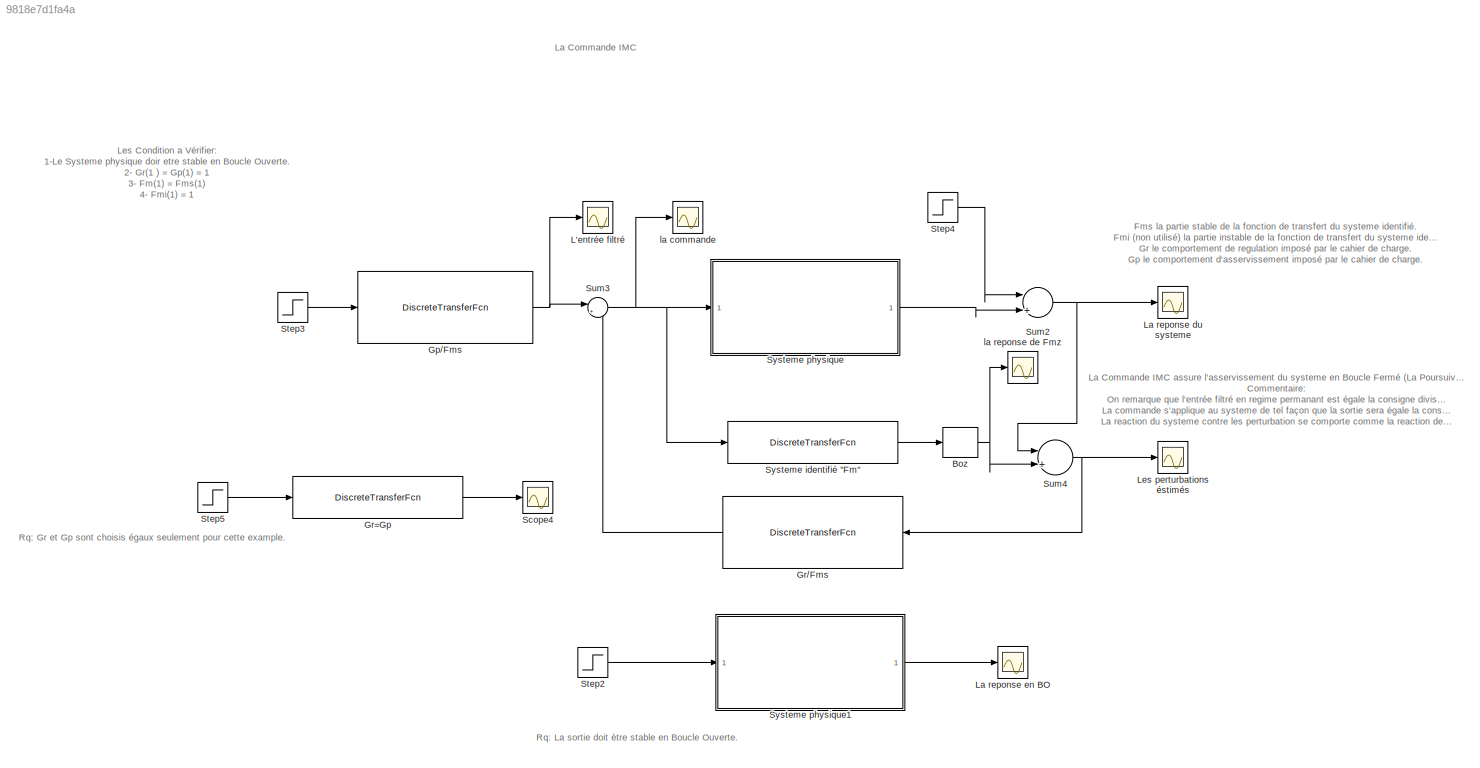
MODEL slx_9818e7d1fa4a
KIND model
CONFIG AbsTol = auto
CONFIG EnableMultiTasking = off
CONFIG FixedStep = auto
CONFIG MaxStep = auto
CONFIG MinStep = auto
CONFIG RelTol = 1e-3
CONFIG SampleTimeConstraint = Unconstrained
CONFIG Solver = VariableStepAuto
CONFIG SolverName = VariableStepAuto
CONFIG StartTime = 0.0
CONFIG StopTime = 100
BLOCK [ZeroOrderHold] Boz 
BLOCK [DiscreteTransferFcn] Gp//Fms
  Denominator = [0.0755   -0.0755    0.0189]
  InputPortMap = u0
  Numerator = [0.2500   -0.4565    0.2085]
  Ports = [1, 1]
BLOCK [DiscreteTransferFcn] Gr//Fms 
  Denominator = [0.0755   -0.0755    0.0189]
  InputPortMap = u0
  Numerator = [0.2500   -0.4565    0.2085]
  Ports = [1, 1]
BLOCK [DiscreteTransferFcn] Gr=Gp
  Denominator = [1.0000   -1.0000    0.2500]
  InputPortMap = u0
  Numerator = [0.5*0.5]
  Ports = [1, 1]
BLOCK [Scope] L'entrée filtré
  NumInputPorts = 1
  Ports = [1]
  ScopeSpecificationString = Simulink.scopes.TimeScopeBlockCfg('CurrentConfiguration', extmgr.ConfigurationSet(extmgr.Configuration('Core','General UI',true),extmgr.Configuration('Core','Source UI',true),extmgr.Configuration('Sources','WiredSimulink',true,'DataLoggingVariableName','ScopeData4'),extmgr.Configuration('Visuals','Time Domain',true,'SerializedDisplays',{struct('MinYLimReal','-0.70909','MaxYLimReal','2.77768','YLab...<+1451ch>
BLOCK [Scope] La reponse du systeme 
  NumInputPorts = 1
  Ports = [1]
  ScopeSpecificationString = Simulink.scopes.TimeScopeBlockCfg('CurrentConfiguration', extmgr.ConfigurationSet(extmgr.Configuration('Core','General UI',true),extmgr.Configuration('Core','Source UI',true),extmgr.Configuration('Sources','WiredSimulink',true,'DataLoggingVariableName','ScopeData2'),extmgr.Configuration('Visuals','Time Domain',true,'SerializedDisplays',{struct('MinYLimReal','-0.25276','MaxYLimReal','2.27484','YLab...<+1389ch>
BLOCK [Scope] La reponse en BO 
  NumInputPorts = 1
  Ports = [1]
  ScopeSpecificationString = Simulink.scopes.TimeScopeBlockCfg('CurrentConfiguration', extmgr.ConfigurationSet(extmgr.Configuration('Core','General UI',true),extmgr.Configuration('Core','Source UI',true),extmgr.Configuration('Sources','WiredSimulink',true,'DataLoggingVariableName','ScopeData1'),extmgr.Configuration('Visuals','Time Domain',true,'SerializedDisplays',{struct('MinYLimReal','-0.35688','MaxYLimReal','1.38929','YLab...<+1389ch>
BLOCK [Scope] Les perturbations éstimés
  NumInputPorts = 1
  Ports = [1]
  ScopeSpecificationString = Simulink.scopes.TimeScopeBlockCfg('CurrentConfiguration', extmgr.ConfigurationSet(extmgr.Configuration('Core','General UI',true),extmgr.Configuration('Core','Source UI',true),extmgr.Configuration('Sources','WiredSimulink',true,'DataLoggingVariableName','ScopeData6'),extmgr.Configuration('Visuals','Time Domain',true,'SerializedDisplays',{struct('MinYLimReal','-0.35688','MaxYLimReal','1.38929','YLab...<+1389ch>
BLOCK [Scope] Scope4
  NumInputPorts = 1
  Ports = [1]
  ScopeSpecificationString = Simulink.scopes.TimeScopeBlockCfg('CurrentConfiguration', extmgr.ConfigurationSet(extmgr.Configuration('Core','General UI',true),extmgr.Configuration('Core','Source UI',true),extmgr.Configuration('Sources','WiredSimulink',true,'DataLoggingVariableName','ScopeData3'),extmgr.Configuration('Visuals','Time Domain',true,'SerializedDisplays',{struct('MinYLimReal','-0.125','MaxYLimReal','1.125','YLabelRe...<+1375ch>
BLOCK [Step] Step2
  SampleTime = 0
  Time = 0
BLOCK [Step] Step3
  SampleTime = 0
  Time = 0
BLOCK [Step] Step4
  SampleTime = 0
  Time = 50
BLOCK [Step] Step5
  SampleTime = 0
  Time = 0
BLOCK [Sum] Sum2
  InputSameDT = off
  Inputs = |++
  OutDataTypeStr = Inherit: Inherit via internal rule
  Ports = [2, 1]
  SaturateOnIntegerOverflow = off
BLOCK [Sum] Sum3
  IconShape = round
  InputSameDT = off
  Inputs = |+-
  OutDataTypeStr = Inherit: Inherit via internal rule
  Ports = [2, 1]
  SaturateOnIntegerOverflow = off
BLOCK [Sum] Sum4
  InputSameDT = off
  Inputs = |+-
  OutDataTypeStr = Inherit: Inherit via internal rule
  Ports = [2, 1]
  SaturateOnIntegerOverflow = off
BLOCK [DiscreteTransferFcn] Systeme identifié "Fm"
  Denominator = [1 -1.826 0.8338]
  InputPortMap = u0
  Numerator = [0.0389 0.03661]
  Ports = [1, 1]
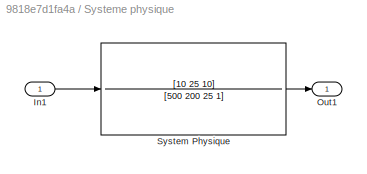
BLOCK [SubSystem] Systeme physique
  Ports = [1, 1]
  RequestExecContextInheritance = off
  Variant = off
BLOCK [Inport] Systeme physique/In1
  IconDisplay = Port number
BLOCK [Outport] Systeme physique/Out1
  IconDisplay = Port number
BLOCK [TransferFcn] Systeme physique/System Physique
  Denominator = [500 200 25 1]
  Numerator = [10 25 10]
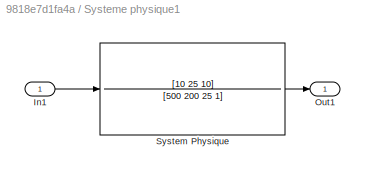
BLOCK [SubSystem] Systeme physique1
  Ports = [1, 1]
  RequestExecContextInheritance = off
  Variant = off
BLOCK [Inport] Systeme physique1/In1
  IconDisplay = Port number
BLOCK [Outport] Systeme physique1/Out1
  IconDisplay = Port number
BLOCK [TransferFcn] Systeme physique1/System Physique
  Denominator = [500 200 25 1]
  Numerator = [10 25 10]
BLOCK [Scope] la commande 
  NumInputPorts = 1
  Ports = [1]
  ScopeSpecificationString = Simulink.scopes.TimeScopeBlockCfg('CurrentConfiguration', extmgr.ConfigurationSet(extmgr.Configuration('Core','General UI',true),extmgr.Configuration('Core','Source UI',true),extmgr.Configuration('Sources','WiredSimulink',true,'DataLoggingVariableName','ScopeData5'),extmgr.Configuration('Visuals','Time Domain',true,'SerializedDisplays',{struct('MinYLimReal','0.70782','MaxYLimReal','1.30961','YLabe...<+1406ch>
BLOCK [Scope] la reponse de Fmz
  NumInputPorts = 1
  Ports = [1]
  ScopeSpecificationString = Simulink.scopes.TimeScopeBlockCfg('CurrentConfiguration', extmgr.ConfigurationSet(extmgr.Configuration('Core','General UI',true),extmgr.Configuration('Core','Source UI',true),extmgr.Configuration('Sources','WiredSimulink',true,'DataLoggingVariableName','ScopeData7'),extmgr.Configuration('Visuals','Time Domain',true,'SerializedDisplays',{struct('MinYLimReal','-0.14151','MaxYLimReal','1.27358','YLab...<+1401ch>
ANNOTATION (root): Rq: La sortie doit ètre stable en Boucle Ouverte .
ANNOTATION (root): Rq: Gr et Gp sont choisis égaux seulement pour cette example.
ANNOTATION (root): La Commande IMC assure l'asservissement du systeme en Boucle Fermé (La Poursuive) et de la Régulation du systeme en Boucle Fermé (Le rejét des perturbations et l'erreur d'identification) Commentaire: On remarque que l'entrée filtré en regime permanant est égale la consigne divisé sur le gain statique du systeme. La commande s'applique au systeme de tel façon que la sortie sera égale la consigne en...<+209ch>
ANNOTATION (root): Fms la partie stable de la fonction de transfert du systeme identifié. Fmi (non utilisé) la partie instable de la fonction de transfert du systeme identifié. Gr le comportement de regulation imposé par le cahier de charge. Gp le comportement d'asservissement imposé par le cahier de charge.
ANNOTATION (root): Les Condition a Vérifier: 1-Le Systeme physique doir etre stable en Boucle Ouverte. 2- Gr(1 ) = Gp(1) = 1 3- Fm(1) = Fms(1) 4- Fmi(1) = 1
ANNOTATION (root): La Commande IMC
NET Boz :1 -> Sum4:2, la reponse de Fmz:1
NET Gp//Fms:1 -> L'entrée filtré:1, Sum3:1
LINE Gr//Fms :1 -> Sum3:2
LINE Gr=Gp:1 -> Scope4:1
LINE Step2:1 -> Systeme physique1:1
LINE Step3:1 -> Gp//Fms:1
LINE Step4:1 -> Sum2:1
LINE Step5:1 -> Gr=Gp:1
NET Sum2:1 -> La reponse du systeme :1, Sum4:1
NET Sum3:1 -> Systeme identifié "Fm":1, Systeme physique:1, la commande :1
NET Sum4:1 -> Gr//Fms :1, Les perturbations éstimés:1
LINE Systeme identifié "Fm":1 -> Boz :1
LINE Systeme physique/In1:1 -> Systeme physique/System Physique:1
LINE Systeme physique/System Physique:1 -> Systeme physique/Out1:1
LINE Systeme physique1/In1:1 -> Systeme physique1/System Physique:1
LINE Systeme physique1/System Physique:1 -> Systeme physique1/Out1:1
LINE Systeme physique1:1 -> La reponse en BO :1
LINE Systeme physique:1 -> Sum2:2
note: NET lines group one-source signal fan-out (src -> all destinations, sorted); 1:1 wires keep LINE
